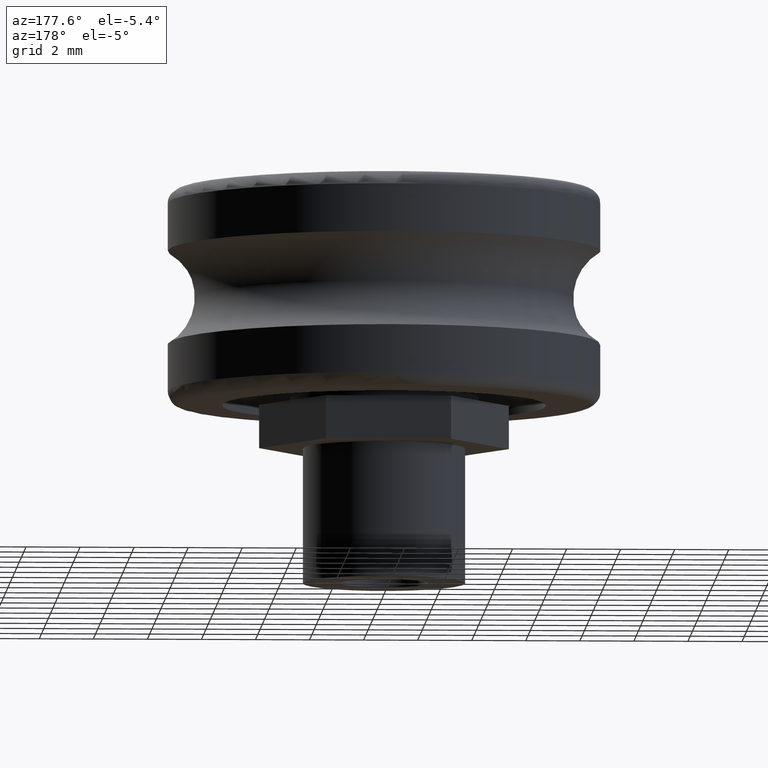
[diagram: clean part render]
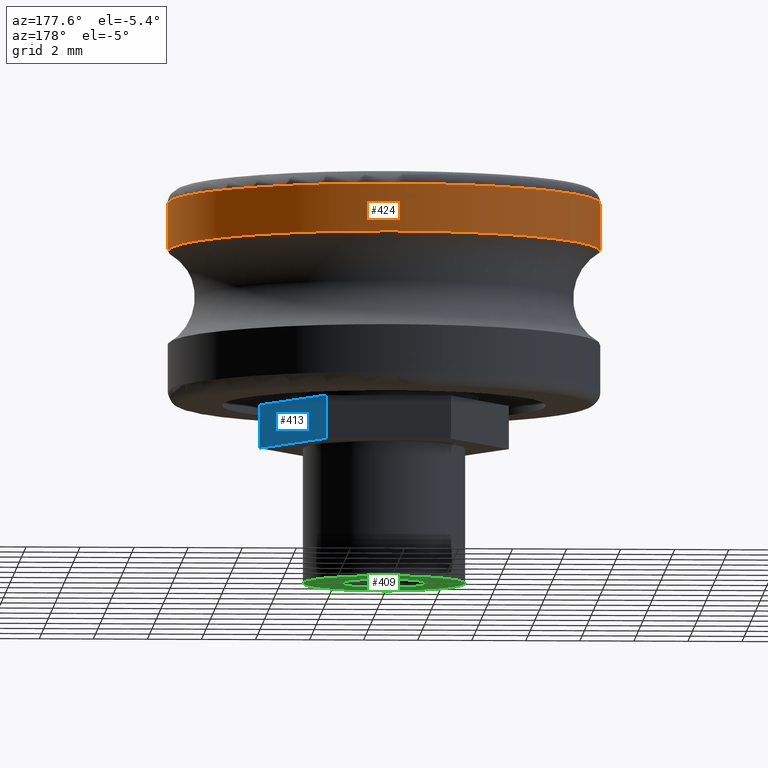
[diagram: same view with three faces highlighted in distinct colors, each labeled with its STEP entity id]
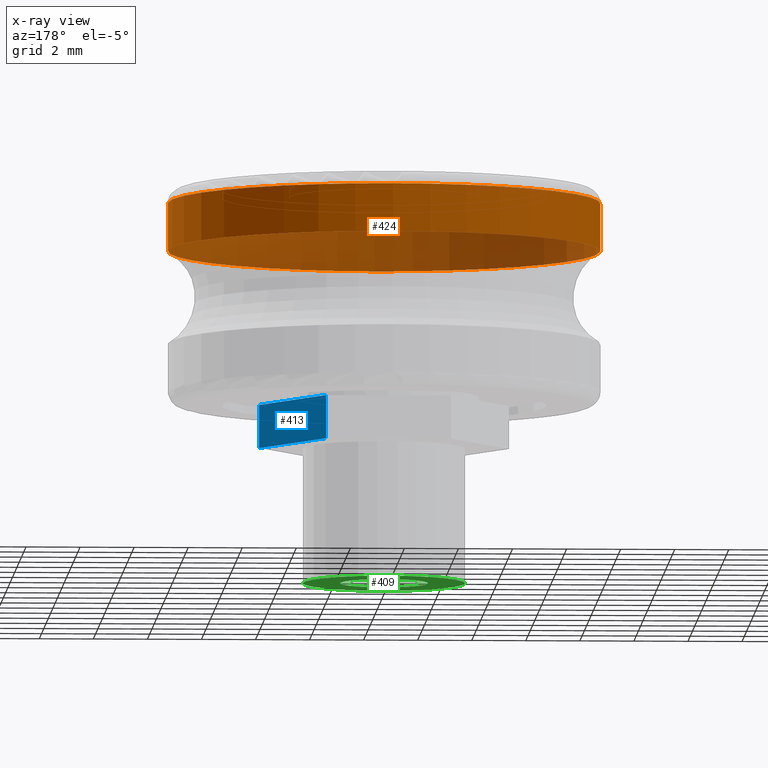
[diagram: x-ray of the same camera — body ghosted, the three highlighted faces saturated]
A machine part, auxiliary view with three faces highlighted in distinct colors.
The next image is the same camera in x-ray (body ghosted, the three faces saturated) — at least one of them is partly hidden behind the body in this view.
Their STEP definitions:

[orange] entity #424 — the highlighted cylindrical surface (bore or boss wall) has radius 8 mm, axis along (0, 0, -1).
#42=CYLINDRICAL_SURFACE('',#488,8.);
#64=FACE_OUTER_BOUND('',#96,.T.);
#96=EDGE_LOOP('',(#351,#352,#353,#354,#355,#356));
#131=LINE('',#732,#159);
#159=VECTOR('',#603,8.);
#174=CIRCLE('',#485,8.);
#175=CIRCLE('',#486,8.);
#177=CIRCLE('',#489,8.);
#178=CIRCLE('',#490,8.);
#213=VERTEX_POINT('',#723);
#214=VERTEX_POINT('',#724);
#215=VERTEX_POINT('',#729);
#216=VERTEX_POINT('',#730);
#260=EDGE_CURVE('',#213,#214,#174,.T.);
#261=EDGE_CURVE('',#214,#213,#175,.T.);
#263=EDGE_CURVE('',#215,#216,#177,.T.);
#264=EDGE_CURVE('',#215,#213,#131,.T.);
#265=EDGE_CURVE('',#216,#215,#178,.T.);
#351=ORIENTED_EDGE('',*,*,#263,.F.);
#352=ORIENTED_EDGE('',*,*,#264,.T.);
#353=ORIENTED_EDGE('',*,*,#260,.T.);
#354=ORIENTED_EDGE('',*,*,#261,.T.);
#355=ORIENTED_EDGE('',*,*,#264,.F.);
#356=ORIENTED_EDGE('',*,*,#265,.F.);
#424=ADVANCED_FACE('',(#64),#42,.T.);
#485=AXIS2_PLACEMENT_3D('',#725,#593,#594);
#486=AXIS2_PLACEMENT_3D('',#726,#595,#596);
#488=AXIS2_PLACEMENT_3D('',#728,#599,#600);
#489=AXIS2_PLACEMENT_3D('',#731,#601,#602);
#490=AXIS2_PLACEMENT_3D('',#733,#604,#605);
#593=DIRECTION('center_axis',(0.,0.,-1.));
#594=DIRECTION('ref_axis',(1.,0.,0.));
#595=DIRECTION('center_axis',(0.,0.,-1.));
#596=DIRECTION('ref_axis',(1.,0.,0.));
#599=DIRECTION('center_axis',(0.,0.,-1.));
#600=DIRECTION('ref_axis',(0.,1.,0.));
#601=DIRECTION('center_axis',(0.,0.,-1.));
#602=DIRECTION('ref_axis',(1.,0.,0.));
#603=DIRECTION('',(0.,0.,1.));
#604=DIRECTION('center_axis',(0.,0.,-1.));
#605=DIRECTION('ref_axis',(1.,0.,0.));
#723=CARTESIAN_POINT('',(-9.79717439317883E-16,-8.,3.5));
#724=CARTESIAN_POINT('',(8.,-9.79717439317883E-16,3.5));
#725=CARTESIAN_POINT('Origin',(0.,0.,3.5));
#726=CARTESIAN_POINT('Origin',(0.,0.,3.5));
#728=CARTESIAN_POINT('Origin',(0.,0.,2.61602540378444));
#729=CARTESIAN_POINT('',(-9.79717439317883E-16,-8.,1.73205080756888));
#730=CARTESIAN_POINT('',(8.,-9.79717439317883E-16,1.73205080756888));
#731=CARTESIAN_POINT('Origin',(0.,0.,1.73205080756888));
#732=CARTESIAN_POINT('',(-9.79717439317883E-16,-8.,2.61602540378444));
#733=CARTESIAN_POINT('Origin',(0.,0.,1.73205080756888));

[blue] entity #413 — the highlighted planar face has unit normal (0.866, 0.5, 0).
#28=PLANE('',#468);
#53=FACE_OUTER_BOUND('',#82,.T.);
#82=EDGE_LOOP('',(#307,#308,#309,#310));
#113=LINE('',#671,#141);
#120=LINE('',#686,#148);
#121=LINE('',#689,#149);
#122=LINE('',#690,#150);
#141=VECTOR('',#535,10.);
#148=VECTOR('',#548,10.);
#149=VECTOR('',#551,10.);
#150=VECTOR('',#552,10.);
#197=VERTEX_POINT('',#668);
#198=VERTEX_POINT('',#670);
#203=VERTEX_POINT('',#684);
#204=VERTEX_POINT('',#688);
#235=EDGE_CURVE('',#197,#198,#113,.T.);
#243=EDGE_CURVE('',#197,#203,#120,.T.);
#244=EDGE_CURVE('',#204,#203,#121,.T.);
#245=EDGE_CURVE('',#198,#204,#122,.T.);
#307=ORIENTED_EDGE('',*,*,#235,.F.);
#308=ORIENTED_EDGE('',*,*,#243,.T.);
#309=ORIENTED_EDGE('',*,*,#244,.F.);
#310=ORIENTED_EDGE('',*,*,#245,.F.);
#413=ADVANCED_FACE('',(#53),#28,.T.);
#468=AXIS2_PLACEMENT_3D('',#687,#549,#550);
#535=DIRECTION('',(-0.5,0.866025403784439,0.));
#548=DIRECTION('',(0.,0.,-1.));
#549=DIRECTION('center_axis',(0.866025403784439,0.5,0.));
#550=DIRECTION('ref_axis',(0.5,-0.866025403784439,0.));
#551=DIRECTION('',(0.5,-0.866025403784439,0.));
#552=DIRECTION('',(0.,0.,-1.));
#668=CARTESIAN_POINT('',(4.61880215351701,-2.22044604925031E-15,-4.));
#670=CARTESIAN_POINT('',(2.30940107675851,4.,-4.));
#671=CARTESIAN_POINT('',(4.61880215351701,-2.22044604925031E-15,-4.));
#684=CARTESIAN_POINT('',(4.61880215351701,-2.22044604925031E-15,-5.6));
#686=CARTESIAN_POINT('',(4.61880215351701,-2.22044604925031E-15,-4.));
#687=CARTESIAN_POINT('Origin',(2.30940107675851,4.,-4.));
#688=CARTESIAN_POINT('',(2.3094010767585,4.,-5.6));
#689=CARTESIAN_POINT('',(4.61880215351701,-2.22044604925031E-15,-5.6));
#690=CARTESIAN_POINT('',(2.30940107675851,4.,-4.));

[green] entity #409 — the highlighted planar face has unit normal (0, 0, 1).
#17=FACE_BOUND('',#77,.T.);
#24=PLANE('',#463);
#49=FACE_OUTER_BOUND('',#76,.T.);
#76=EDGE_LOOP('',(#290));
#77=EDGE_LOOP('',(#291));
#164=CIRCLE('',#459,1.621);
#165=CIRCLE('',#461,3.);
#191=VERTEX_POINT('',#652);
#192=VERTEX_POINT('',#656);
#227=EDGE_CURVE('',#191,#191,#164,.T.);
#229=EDGE_CURVE('',#192,#192,#165,.T.);
#290=ORIENTED_EDGE('',*,*,#229,.T.);
#291=ORIENTED_EDGE('',*,*,#227,.T.);
#409=ADVANCED_FACE('',(#49,#17),#24,.F.);
#459=AXIS2_PLACEMENT_3D('',#653,#518,#519);
#461=AXIS2_PLACEMENT_3D('',#657,#523,#524);
#463=AXIS2_PLACEMENT_3D('',#661,#528,#529);
#518=DIRECTION('center_axis',(0.,0.,1.));
#519=DIRECTION('ref_axis',(-1.,0.,0.));
#523=DIRECTION('center_axis',(0.,0.,-1.));
#524=DIRECTION('ref_axis',(1.,0.,0.));
#528=DIRECTION('center_axis',(0.,0.,1.));
#529=DIRECTION('ref_axis',(1.,0.,0.));
#652=CARTESIAN_POINT('',(1.621,-2.14140553923581E-15,-10.6));
#653=CARTESIAN_POINT('Origin',(-6.93889390390723E-17,-1.94289029309402E-15,
-10.6));
#656=CARTESIAN_POINT('',(-3.,-1.57549625334982E-15,-10.6));
#657=CARTESIAN_POINT('Origin',(-6.93889390390723E-17,-1.94289029309402E-15,
-10.6));
#661=CARTESIAN_POINT('Origin',(1.73248989114555E-16,-2.01998911424855E-15,
-10.6));